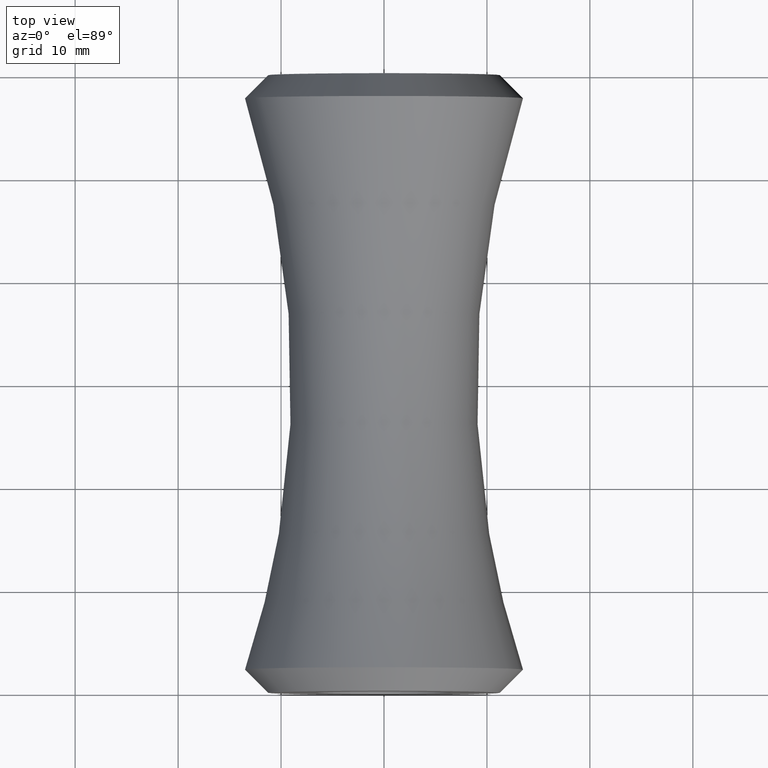
[diagram: clean part render]
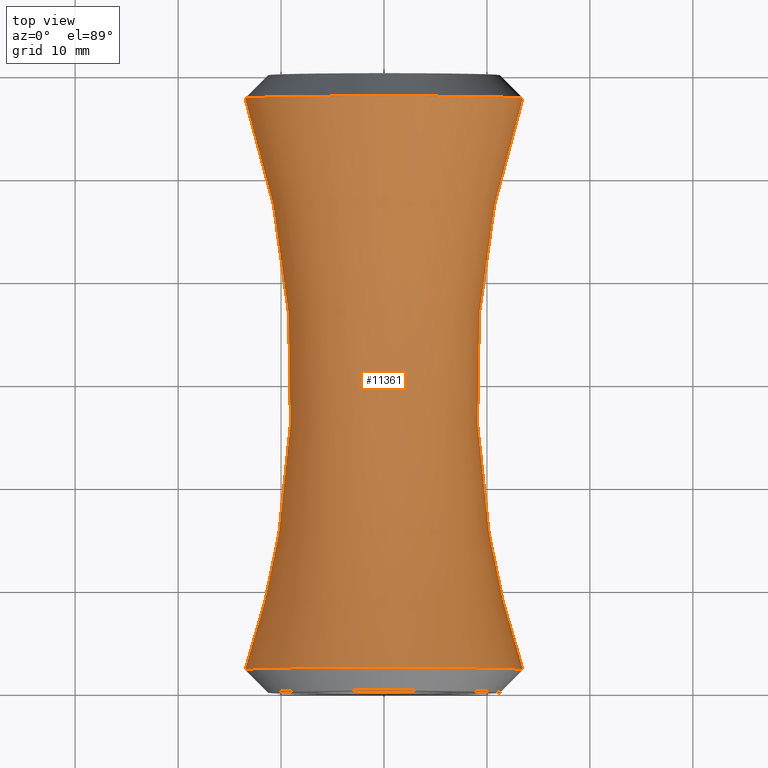
[diagram: same view with one face highlighted and labeled with its STEP entity id]
A machine part, top view. The second image highlights one B-rep face of the part: STEP entity #11361.
In plain terms, the highlighted toroidal blend (fillet) surface has major radius 96.8125 mm and minor (blend) radius 87.8125 mm.
Its self-contained STEP definition (entity closure, byte-faithful):
#393 = TOROIDAL_SURFACE ( 'NONE', #818, 96.81250000000009948, 87.81250000000009948 ) ;
#485 = EDGE_CURVE ( 'NONE', #2297, #2297, #1258, .T. ) ;
#818 = AXIS2_PLACEMENT_3D ( 'NONE', #5719, #8445, #5767 ) ;
#1258 = CIRCLE ( 'NONE', #8182, 13.50000000000000888 ) ;
#1293 = EDGE_LOOP ( 'NONE', ( #3761 ) ) ;
#1944 = CARTESIAN_POINT ( 'NONE',  ( -13.49999999999998757, -27.75000000000002132, 0.000000000000000000 ) ) ;
#2297 = VERTEX_POINT ( 'NONE', #10545 ) ;
#2575 = DIRECTION ( 'NONE',  ( -3.061616997868382648E-16, 1.000000000000000000, -0.000000000000000000 ) ) ;
#2791 = AXIS2_PLACEMENT_3D ( 'NONE', #7291, #2575, #6372 ) ;
#3108 = EDGE_LOOP ( 'NONE', ( #9382 ) ) ;
#3727 = DIRECTION ( 'NONE',  ( -3.061616997868382648E-16, 1.000000000000000000, -0.000000000000000000 ) ) ;
#3761 = ORIENTED_EDGE ( 'NONE', *, *, #9461, .T. ) ;
#3897 = VERTEX_POINT ( 'NONE', #1944 ) ;
#5719 = CARTESIAN_POINT ( 'NONE',  ( 0.000000000000000000, -6.665401464000979776E-15, 0.000000000000000000 ) ) ;
#5767 = DIRECTION ( 'NONE',  ( -1.000000000000000000, -3.061616997868382648E-16, 0.000000000000000000 ) ) ;
#6372 = DIRECTION ( 'NONE',  ( -1.000000000000000000, -2.569960705150825891E-16, 0.000000000000000000 ) ) ;
#6616 = CIRCLE ( 'NONE', #2791, 13.49999999999999645 ) ;
#6884 = FACE_OUTER_BOUND ( 'NONE', #3108, .T. ) ;
#7291 = CARTESIAN_POINT ( 'NONE',  ( 8.504715738136713553E-15, -27.75000000000001776, 0.000000000000000000 ) ) ;
#7509 = CARTESIAN_POINT ( 'NONE',  ( -8.487258600032826119E-15, 27.75000000000003908, 0.000000000000000000 ) ) ;
#7932 = FACE_OUTER_BOUND ( 'NONE', #1293, .T. ) ;
#8182 = AXIS2_PLACEMENT_3D ( 'NONE', #7509, #3727, #10373 ) ;
#8445 = DIRECTION ( 'NONE',  ( -3.061616997868382648E-16, 1.000000000000000000, -0.000000000000000000 ) ) ;
#9382 = ORIENTED_EDGE ( 'NONE', *, *, #485, .F. ) ;
#9461 = EDGE_CURVE ( 'NONE', #3897, #3897, #6616, .T. ) ;
#10373 = DIRECTION ( 'NONE',  ( -1.000000000000000000, -2.569960705150823426E-16, 0.000000000000000000 ) ) ;
#10545 = CARTESIAN_POINT ( 'NONE',  ( -13.50000000000001776, 27.75000000000003553, 0.000000000000000000 ) ) ;
#11361 = ADVANCED_FACE ( 'NONE', ( #6884, #7932 ), #393, .F. ) ;